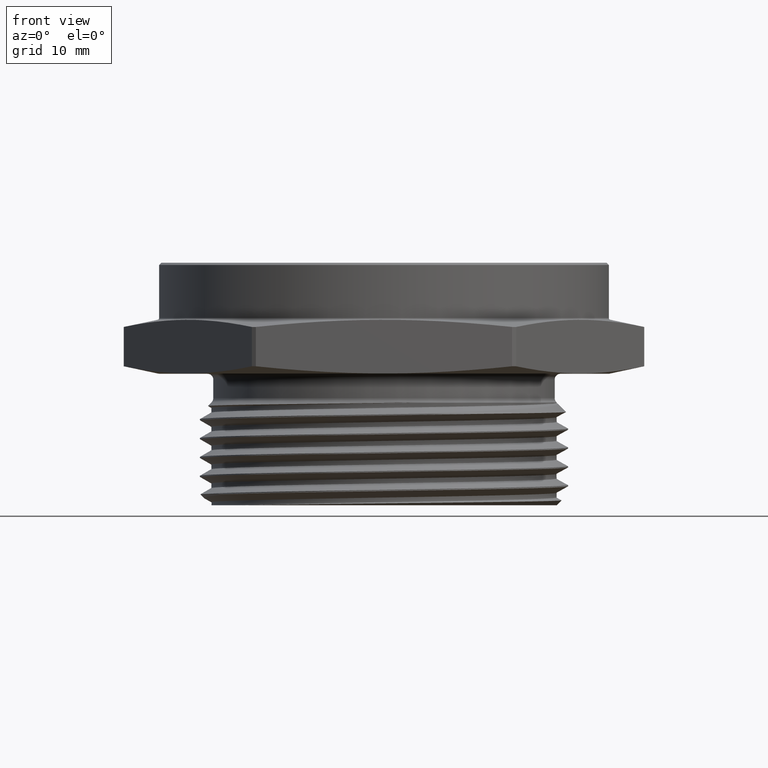
[diagram: clean part render]
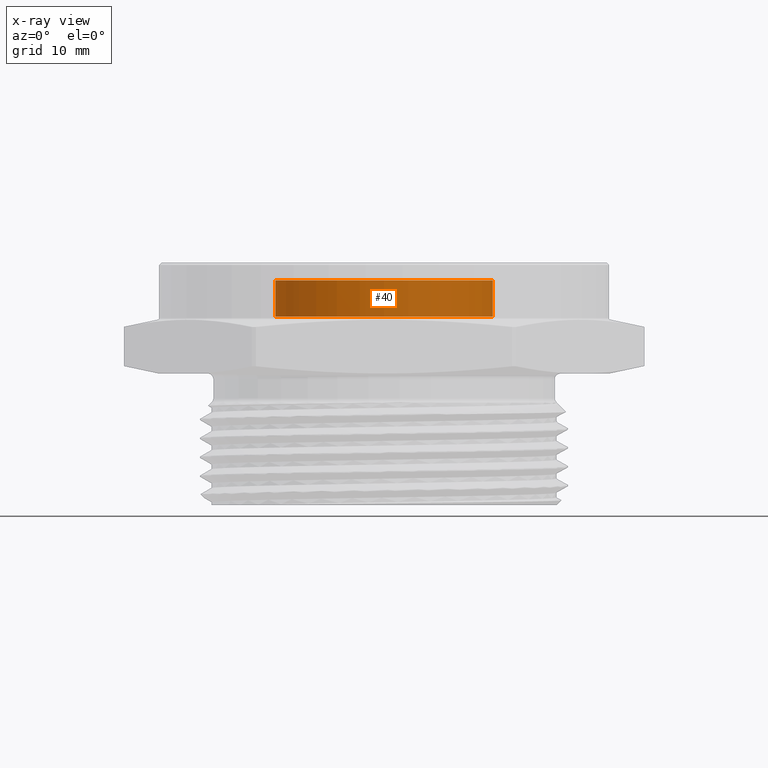
[diagram: x-ray — body ghosted, one internal face saturated and labeled with its STEP entity id]
A machine part, front view, then the same camera in x-ray: the body is ghosted and one INTERNAL B-rep face — a face not visible from any outside direction — is saturated and labeled: STEP entity #40.
In plain terms, the highlighted cylindrical surface (partial cylindrical patch) has radius 12.192 mm, axis along (-0, -0, 1).
Its self-contained STEP definition (entity closure, byte-faithful):
#40 = ADVANCED_FACE ( 'NONE', ( #754 ), #757, .T. ) ;
#185 = LINE ( 'NONE', #1300, #187 ) ;
#187 = VECTOR ( 'NONE', #1301, 39.37007874015748100 ) ;
#188 = LINE ( 'NONE', #1302, #189 ) ;
#189 = VECTOR ( 'NONE', #1303, 39.37007874015748100 ) ;
#251 = ORIENTED_EDGE ( 'NONE', *, *, #3040, .F. ) ;
#254 = ORIENTED_EDGE ( 'NONE', *, *, #3039, .T. ) ;
#256 = ORIENTED_EDGE ( 'NONE', *, *, #3036, .F. ) ;
#401 = AXIS2_PLACEMENT_3D ( 'NONE', #1312, #1313, #1314 ) ;
#402 = AXIS2_PLACEMENT_3D ( 'NONE', #1317, #1318, #1319 ) ;
#431 = VERTEX_POINT ( 'NONE', #1896 ) ;
#437 = VERTEX_POINT ( 'NONE', #1900 ) ;
#453 = VERTEX_POINT ( 'NONE', #1916 ) ;
#454 = VERTEX_POINT ( 'NONE', #1917 ) ;
#637 = CIRCLE ( 'NONE', #401, 0.4800000000000001500 ) ;
#638 = CIRCLE ( 'NONE', #402, 0.4800000000000001500 ) ;
#745 = EDGE_LOOP ( 'NONE', ( #256, #251, #254, #3115 ) ) ;
#754 = FACE_OUTER_BOUND ( 'NONE', #745, .T. ) ;
#757 = CYLINDRICAL_SURFACE ( 'NONE', #3046, 0.4800000000000001500 ) ;
#1300 = CARTESIAN_POINT ( 'NONE',  ( -0.4800000000000001500, 5.878304635907297200E-017, 0.2519999999999999500 ) ) ;
#1301 = DIRECTION ( 'NONE',  ( -0.0000000000000000000, -0.0000000000000000000, 1.000000000000000000 ) ) ;
#1302 = CARTESIAN_POINT ( 'NONE',  ( 0.4800000000000001500, 0.0000000000000000000, 0.2519999999999999500 ) ) ;
#1303 = DIRECTION ( 'NONE',  ( -0.0000000000000000000, -0.0000000000000000000, 1.000000000000000000 ) ) ;
#1312 = CARTESIAN_POINT ( 'NONE',  ( 0.0000000000000000000, 0.0000000000000000000, 0.2519999999999999500 ) ) ;
#1313 = DIRECTION ( 'NONE',  ( 0.0000000000000000000, 0.0000000000000000000, -1.000000000000000000 ) ) ;
#1314 = DIRECTION ( 'NONE',  ( -1.000000000000000000, 0.0000000000000000000, 0.0000000000000000000 ) ) ;
#1317 = CARTESIAN_POINT ( 'NONE',  ( 0.0000000000000000000, 0.0000000000000000000, 0.4119999999999999200 ) ) ;
#1318 = DIRECTION ( 'NONE',  ( 0.0000000000000000000, 0.0000000000000000000, -1.000000000000000000 ) ) ;
#1319 = DIRECTION ( 'NONE',  ( -1.000000000000000000, 0.0000000000000000000, 0.0000000000000000000 ) ) ;
#1896 = CARTESIAN_POINT ( 'NONE',  ( 0.4800000000000001500, 0.0000000000000000000, 0.2519999999999999500 ) ) ;
#1900 = CARTESIAN_POINT ( 'NONE',  ( -0.4800000000000001500, 5.878304635907297200E-017, 0.4119999999999999200 ) ) ;
#1916 = CARTESIAN_POINT ( 'NONE',  ( 0.4800000000000001500, 0.0000000000000000000, 0.4119999999999999200 ) ) ;
#1917 = CARTESIAN_POINT ( 'NONE',  ( -0.4800000000000001500, 5.878304635907297200E-017, 0.2519999999999999500 ) ) ;
#3036 = EDGE_CURVE ( 'NONE', #454, #437, #185, .T. ) ;
#3039 = EDGE_CURVE ( 'NONE', #431, #453, #188, .T. ) ;
#3040 = EDGE_CURVE ( 'NONE', #431, #454, #637, .T. ) ;
#3041 = EDGE_CURVE ( 'NONE', #453, #437, #638, .T. ) ;
#3046 = AXIS2_PLACEMENT_3D ( 'NONE', #3388, #3383, #3387 ) ;
#3115 = ORIENTED_EDGE ( 'NONE', *, *, #3041, .T. ) ;
#3383 = DIRECTION ( 'NONE',  ( -0.0000000000000000000, -0.0000000000000000000, 1.000000000000000000 ) ) ;
#3387 = DIRECTION ( 'NONE',  ( 1.000000000000000000, 0.0000000000000000000, 0.0000000000000000000 ) ) ;
#3388 = CARTESIAN_POINT ( 'NONE',  ( 0.0000000000000000000, 0.0000000000000000000, 0.2519999999999999500 ) ) ;